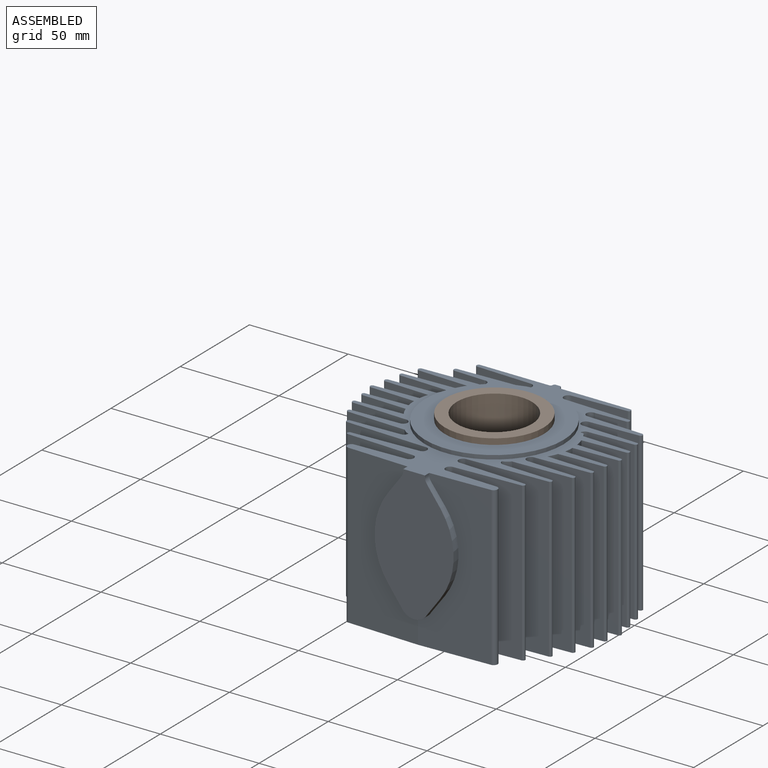
[diagram: assembled view]
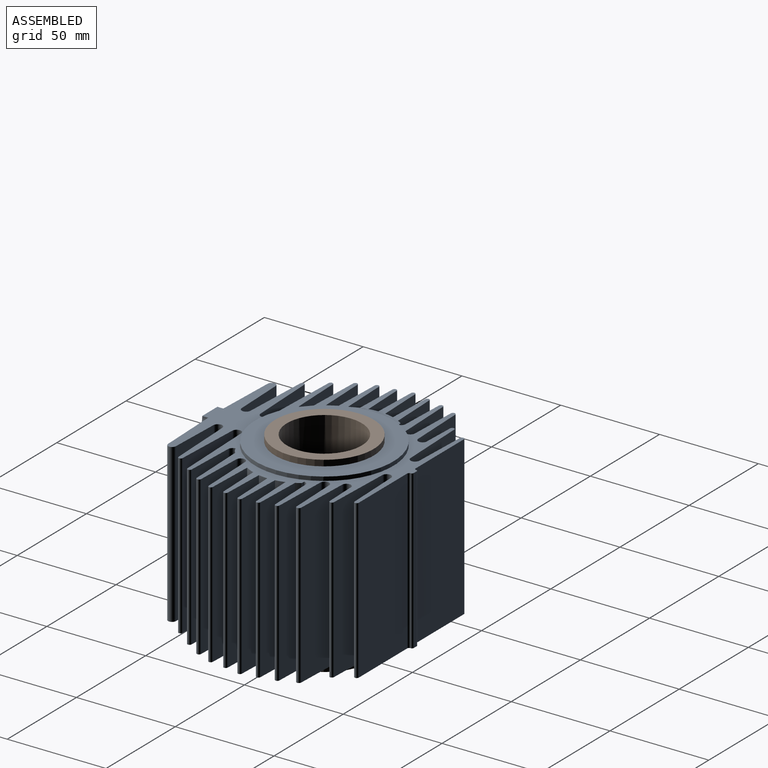
[diagram: assembled view, second angle]
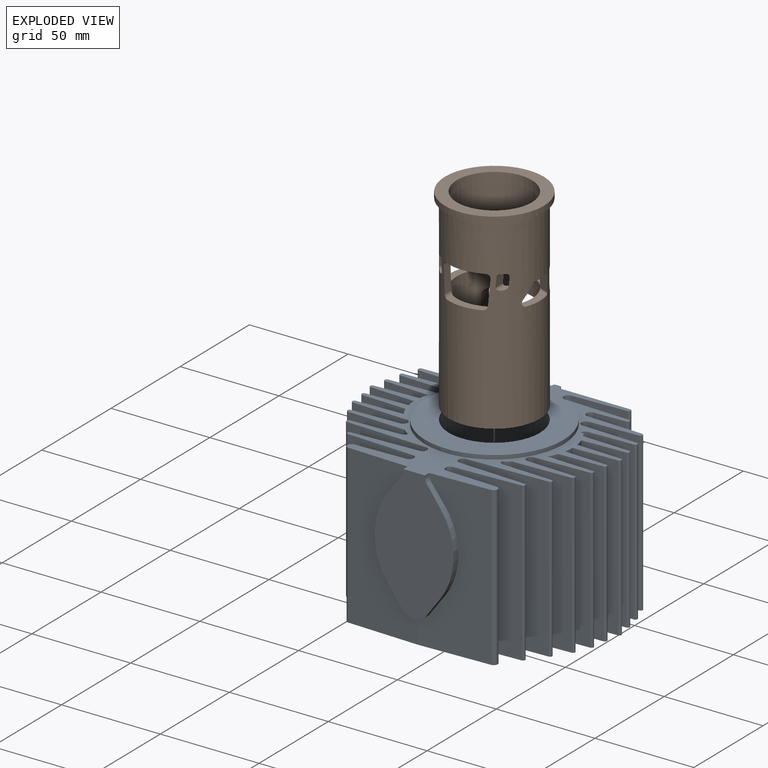
[diagram: exploded view]
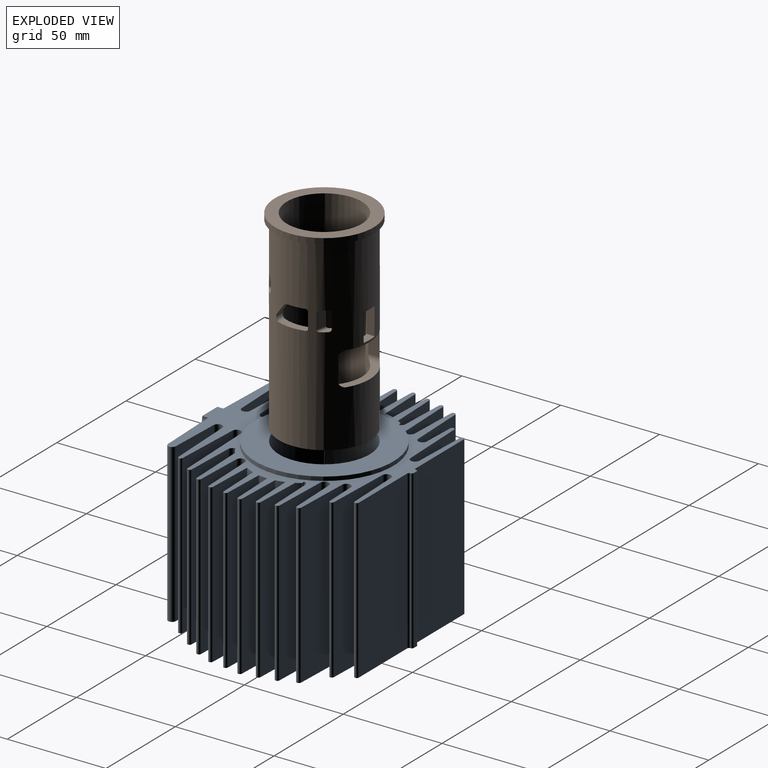
[diagram: exploded view, second angle]
ASSEMBLY  parts=2 mates=2
PART A: 139 faces, bbox 104.6x82.6x127.8 mm
  f0: plane 80.58x34.48mm, normal (-1,0,0.04), area 2377.9mm2, adj f1,f13,f53,f54,f55,f124,f125,f126
  f1: cylinder r=2.25mm len=21.59mm, axis (0,1,0), area 134.6mm2, adj f0,f2,f55,f124
  f2: plane 80.47x26.22mm, normal (1,0,0.03), area 1734.9mm2, adj f1,f13,f14,f54,f55,f124,f125,f126
  f3: plane 80.47x41.22mm, normal (-1,0,0.03), area 2935.7mm2, adj f4,f51,f52,f54,f55,f121,f122,f123
  f4: cylinder r=2.25mm len=21.59mm, axis (0,1,0), area 134.6mm2, adj f3,f5,f55,f123
  f5: plane 80.58x34.48mm, normal (1,0,0.04), area 2377.9mm2, adj f4,f52,f53,f54,f55,f121,f122,f123
  f6: plane 80.58x34.48mm, normal (-1,0,-0.04), area 2377.9mm2, adj f7,f54,f55,f56,f94,f118,f119,f120
  f7: cylinder r=2.25mm len=8.89mm, axis (0,1,0), area 47.3mm2, adj f6,f8,f54,f120
  f8: plane 80.47x26.22mm, normal (1,0,-0.03), area 1734.9mm2, adj f7,f54,f55,f56,f57,f118,f119,f120
  f9: plane 80.47x41.22mm, normal (-1,0,-0.03), area 2935.7mm2, adj f10,f54,f55,f92,f93,f115,f116,f117
  f10: cylinder r=2.25mm len=8.89mm, axis (0,1,0), area 47.3mm2, adj f9,f11,f54,f117
  f11: plane 80.58x34.48mm, normal (1,0,-0.04), area 2377.9mm2, adj f10,f54,f55,f93,f94,f115,f116,f117
  f12: plane 80x35mm, normal (1,0,0), area 2800mm2, adj f18,f54,f55,f97
  f13: cylinder r=2.25mm len=8.89mm, axis (0,1,0), area 47.3mm2, adj f0,f2,f54,f126
  f14: cylinder r=2mm len=80mm, axis (0,1,0), area 502.7mm2, adj f2,f15,f54,f55
  f15: plane 80.47x36.47mm, normal (-1,0,0.03), area 1922.6mm2, adj f14,f54,f55,f58,f127,f128,f129,f130
  f16: cylinder r=23mm len=80mm, axis (0,1,0), area 11561.1mm2, adj f55,f100
  f17: plane 80x35mm, normal (1,0,0), area 2800mm2, adj f54,f55,f59,f99
  f18: cylinder r=1.05mm len=80mm, axis (0,1,0), area 263.9mm2, adj f12,f19,f54,f55
  f19: plane 80x27.75mm, normal (-1,0,0.03), area 2221.4mm2, adj f18,f20,f54,f55
  f20: extruded ~80x4.5mm, area 565.5mm2, adj f19,f21,f54,f55
  f21: plane 80x33.26mm, normal (1,0,0.03), area 2662.2mm2, adj f20,f22,f54,f55
  f22: cylinder r=1.05mm len=80mm, axis (0,1,0), area 256.1mm2, adj f21,f23,f54,f55
  f23: plane 80x15.56mm, normal (-1,0,0.03), area 1245.2mm2, adj f22,f24,f54,f55
  f24: cylinder r=2.25mm len=80mm, axis (0,1,0), area 620.9mm2, adj f23,f25,f54,f55
  f25: plane 80x27.9mm, normal (1,0,0.03), area 2233.4mm2, adj f24,f26,f54,f55
  f26: cylinder r=1.13mm len=80mm, axis (0,1,0), area 266.1mm2, adj f25,f27,f54,f55
  f27: plane 80x24.9mm, normal (-1,0,0.03), area 1993.2mm2, adj f26,f28,f54,f55
  f28: cylinder r=2.25mm len=80mm, axis (0,1,0), area 565.5mm2, adj f27,f29,f54,f55
  f29: plane 80x28.1mm, normal (1,0,0.03), area 2249.4mm2, adj f28,f30,f54,f55
  f30: cylinder r=1.05mm len=80mm, axis (0,1,0), area 263.9mm2, adj f29,f31,f54,f55
  f31: plane 80x22.81mm, normal (-1,0,0.03), area 1825.9mm2, adj f30,f32,f54,f55
  f32: cylinder r=2.25mm len=80mm, axis (0,1,0), area 261.4mm2, adj f31,f54,f55,f114
  f33: plane 80x23.82mm, normal (1,0,0.03), area 1906.8mm2, adj f34,f54,f55,f113
  f34: cylinder r=1.05mm len=80mm, axis (0,1,0), area 263.9mm2, adj f33,f35,f54,f55
  f35: plane 80x22.22mm, normal (-1,0,0.03), area 1779mm2, adj f34,f54,f55,f112
  f36: plane 80x22.69mm, normal (1,0,0.03), area 1816.6mm2, adj f37,f54,f55,f112
  f37: cylinder r=1.05mm len=80mm, axis (0,1,0), area 263.9mm2, adj f36,f38,f54,f55
  f38: plane 80x22.46mm, normal (-1,0,0.03), area 1798mm2, adj f37,f54,f55,f111
  f39: plane 80x21.39mm, normal (1,0,0.03), area 1712.6mm2, adj f40,f54,f55,f111
  f40: cylinder r=1.05mm len=80mm, axis (0,1,0), area 263.9mm2, adj f39,f41,f54,f55
  f41: plane 80x22.41mm, normal (-1,0,0.03), area 1793.8mm2, adj f40,f54,f55,f110
  f42: plane 80x23.62mm, normal (1,0,0.03), area 1890.9mm2, adj f43,f54,f55,f110
  f43: cylinder r=1.05mm len=80mm, axis (0,1,0), area 263.9mm2, adj f42,f44,f54,f55
  f44: plane 80x27.69mm, normal (-1,0,0.03), area 2216.9mm2, adj f43,f45,f54,f55
  f45: cylinder r=2.25mm len=80mm, axis (0,1,0), area 562.7mm2, adj f44,f46,f54,f55
  f46: plane 80x24.18mm, normal (1,0,0.03), area 1935.9mm2, adj f45,f47,f54,f55
  f47: cylinder r=1.08mm len=80mm, axis (0,1,0), area 271.8mm2, adj f46,f48,f54,f55
  f48: plane 80x29.42mm, normal (-1,0,0.03), area 2355mm2, adj f47,f54,f55,f109
  f49: cylinder r=2.25mm len=80mm, axis (0,1,0), area 275mm2, adj f50,f54,f55,f109
  f50: plane 80x25.25mm, normal (1,0,0.03), area 2021mm2, adj f49,f51,f54,f55
  f51: cylinder r=1.05mm len=80mm, axis (0,1,0), area 263.9mm2, adj f3,f50,f54,f55
  f52: cylinder r=2.25mm len=8.89mm, axis (0,1,0), area 47.3mm2, adj f3,f5,f54,f121
  f53: cylinder r=1.05mm len=80mm, axis (0,1,0), area 263.9mm2, adj f0,f5,f54,f55
  f54: plane 127.2x104mm, normal (0,-1,0), area 3334.3mm2, adj f0,f2,f3,f5,f6,f7,f8,f9
  f55: plane 127.2x101.16mm, normal (0,1,0), area 5488.6mm2, adj f0,f1,f2,f3,f4,f5,f6,f8
  f56: cylinder r=2.25mm len=21.59mm, axis (0,1,0), area 134.6mm2, adj f6,f8,f55,f118
  f57: cylinder r=2mm len=80mm, axis (0,1,0), area 502.7mm2, adj f8,f54,f55,f58
  f58: plane 80.47x36.47mm, normal (-1,0,-0.03), area 1922.6mm2, adj f15,f54,f55,f57,f131,f132,f133,f134
  f59: cylinder r=1.05mm len=80mm, axis (0,1,0), area 263.9mm2, adj f17,f54,f55,f60
  f60: plane 80x27.75mm, normal (-1,0,-0.03), area 2221.4mm2, adj f54,f55,f59,f61
  f61: extruded ~80x4.5mm, area 565.5mm2, adj f54,f55,f60,f62
  f62: plane 80x33.26mm, normal (1,0,-0.03), area 2662.2mm2, adj f54,f55,f61,f63
  f63: cylinder r=1.05mm len=80mm, axis (0,1,0), area 256.1mm2, adj f54,f55,f62,f64
  f64: plane 80x15.56mm, normal (-1,0,-0.03), area 1245.2mm2, adj f54,f55,f63,f65
  f65: cylinder r=2.25mm len=80mm, axis (0,1,0), area 620.9mm2, adj f54,f55,f64,f66
  f66: plane 80x27.9mm, normal (1,0,-0.03), area 2233.4mm2, adj f54,f55,f65,f67
  f67: cylinder r=1.13mm len=80mm, axis (0,1,0), area 266.1mm2, adj f54,f55,f66,f68
  f68: plane 80x24.9mm, normal (-1,0,-0.03), area 1993.2mm2, adj f54,f55,f67,f69
  f69: cylinder r=2.25mm len=80mm, axis (0,1,0), area 565.5mm2, adj f54,f55,f68,f70
  f70: plane 80x28.1mm, normal (1,0,-0.03), area 2249.4mm2, adj f54,f55,f69,f71
  f71: cylinder r=1.05mm len=80mm, axis (0,1,0), area 263.9mm2, adj f54,f55,f70,f72
  f72: plane 80x22.81mm, normal (-1,0,-0.03), area 1825.9mm2, adj f54,f55,f71,f73
  f73: cylinder r=2.25mm len=80mm, axis (0,1,0), area 261.4mm2, adj f54,f55,f72,f108
  f74: plane 80x23.82mm, normal (1,0,-0.03), area 1906.8mm2, adj f54,f55,f75,f107
  f75: cylinder r=1.05mm len=80mm, axis (0,1,0), area 263.9mm2, adj f54,f55,f74,f76
  f76: plane 80x22.22mm, normal (-1,0,-0.03), area 1779mm2, adj f54,f55,f75,f106
  f77: plane 80x22.69mm, normal (1,0,-0.03), area 1816.6mm2, adj f54,f55,f78,f106
  f78: cylinder r=1.05mm len=80mm, axis (0,1,0), area 263.9mm2, adj f54,f55,f77,f79
  f79: plane 80x22.46mm, normal (-1,0,-0.03), area 1798mm2, adj f54,f55,f78,f105
  f80: plane 80x21.39mm, normal (1,0,-0.03), area 1712.6mm2, adj f54,f55,f81,f105
  f81: cylinder r=1.05mm len=80mm, axis (0,1,0), area 263.9mm2, adj f54,f55,f80,f82
  f82: plane 80x22.41mm, normal (-1,0,-0.03), area 1793.8mm2, adj f54,f55,f81,f104
  f83: plane 80x23.62mm, normal (1,0,-0.03), area 1890.9mm2, adj f54,f55,f84,f104
  f84: cylinder r=1.05mm len=80mm, axis (0,1,0), area 263.9mm2, adj f54,f55,f83,f85
  f85: plane 80x27.69mm, normal (-1,0,-0.03), area 2216.9mm2, adj f54,f55,f84,f86
  f86: cylinder r=2.25mm len=80mm, axis (0,1,0), area 562.7mm2, adj f54,f55,f85,f87
  f87: plane 80x24.18mm, normal (1,0,-0.03), area 1935.9mm2, adj f54,f55,f86,f88
  f88: cylinder r=1.08mm len=80mm, axis (0,1,0), area 271.8mm2, adj f54,f55,f87,f89
  f89: plane 80x29.42mm, normal (-1,0,-0.03), area 2355mm2, adj f54,f55,f88,f103
  f90: cylinder r=2.25mm len=80mm, axis (0,1,0), area 275mm2, adj f54,f55,f91,f103
  f91: plane 80x25.25mm, normal (1,0,-0.03), area 2021mm2, adj f54,f55,f90,f92
  f92: cylinder r=1.05mm len=80mm, axis (0,1,0), area 263.9mm2, adj f9,f54,f55,f91
  f93: cylinder r=2.25mm len=21.59mm, axis (0,1,0), area 134.6mm2, adj f9,f11,f55,f115
  f94: cylinder r=1.05mm len=80mm, axis (0,1,0), area 263.9mm2, adj f6,f11,f54,f55
  f95: plane 80x2mm, normal (1,0,0), area 160mm2, adj f54,f55,f96,f98
  f96: cylinder r=1mm len=80mm, axis (0,-1,0), area 125.7mm2, adj f54,f55,f95,f97
  f97: cylinder r=1mm len=80mm, axis (0,1,0), area 125.7mm2, adj f12,f54,f55,f96
  f98: cylinder r=1mm len=80mm, axis (0,-1,0), area 125.7mm2, adj f54,f55,f95,f99
  f99: cylinder r=1mm len=80mm, axis (0,1,0), area 125.7mm2, adj f17,f54,f55,f98
  f100: cylinder r=23mm len=46.01mm, axis (0,1,0), area 289.1mm2, adj f16,f102
  f101: cylinder r=35mm len=70mm, axis (0,1,0), area 439.8mm2, adj f54,f102
  f102: plane 70x70mm, normal (0,-1,0), area 2185.9mm2, adj f100,f101
  f103: cylinder r=6.5mm len=80mm, axis (0,1,0), area 332.3mm2, adj f54,f55,f89,f90
  f104: cylinder r=25mm len=80mm, axis (0,1,0), area 407.6mm2, adj f54,f55,f82,f83
  f105: cylinder r=25mm len=80mm, axis (0,1,0), area 372.9mm2, adj f54,f55,f79,f80
  f106: cylinder r=25mm len=80mm, axis (0,1,0), area 378mm2, adj f54,f55,f76,f77
  f107: cylinder r=25mm len=80mm, axis (0,1,0), area 215.8mm2, adj f54,f55,f74,f108
  f108: cylinder r=8mm len=80mm, axis (0,1,0), area 140.3mm2, adj f54,f55,f73,f107
  f109: cylinder r=6.5mm len=80mm, axis (0,1,0), area 332.3mm2, adj f48,f49,f54,f55
  f110: cylinder r=25mm len=80mm, axis (0,1,0), area 407.6mm2, adj f41,f42,f54,f55
  f111: cylinder r=25mm len=80mm, axis (0,1,0), area 372.9mm2, adj f38,f39,f54,f55
  f112: cylinder r=25mm len=80mm, axis (0,1,0), area 378mm2, adj f35,f36,f54,f55
  f113: cylinder r=25mm len=80mm, axis (0,1,0), area 215.8mm2, adj f33,f54,f55,f114
  f114: cylinder r=8mm len=80mm, axis (0,1,0), area 140.3mm2, adj f32,f54,f55,f113
  f115: plane 7.15x5.24mm, normal (0,0.59,-0.81), area 36.8mm2, adj f9,f11,f93,f116
  f116: cylinder r=35mm len=41.36mm, axis (-1,0,0), area 209.4mm2, adj f9,f11,f115,f117
  f117: plane 7.15x5.24mm, normal (0,-0.59,-0.81), area 36.8mm2, adj f9,f10,f11,f116
  f118: plane 7.15x5.24mm, normal (0,0.59,-0.81), area 36.8mm2, adj f6,f8,f56,f119
  f119: cylinder r=35mm len=41.36mm, axis (-1,0,0), area 209.4mm2, adj f6,f8,f118,f120
  f120: plane 7.15x5.24mm, normal (0,-0.59,-0.81), area 36.8mm2, adj f6,f7,f8,f119
  f121: plane 7.15x5.24mm, normal (0,-0.59,0.81), area 36.8mm2, adj f3,f5,f52,f122
  f122: cylinder r=35mm len=41.36mm, axis (-1,0,0), area 209.4mm2, adj f3,f5,f121,f123
  f123: plane 7.15x5.24mm, normal (0,0.59,0.81), area 36.8mm2, adj f3,f4,f5,f122
  f124: plane 7.15x5.24mm, normal (0,0.59,0.81), area 36.8mm2, adj f0,f1,f2,f125
  f125: cylinder r=35mm len=41.36mm, axis (-1,0,0), area 209.4mm2, adj f0,f2,f124,f126
  f126: plane 7.15x5.24mm, normal (0,-0.59,0.81), area 36.8mm2, adj f0,f2,f13,f125
  f127: plane 9.16x6.71mm, normal (0,0.59,0.81), area 36.1mm2, adj f15,f128,f131,f136
  f128: cylinder r=35mm len=41.36mm, axis (1,0,0), area 146mm2, adj f15,f127,f129,f136
  f129: plane 9.26x6.78mm, normal (0,-0.59,0.81), area 36.5mm2, adj f15,f128,f136,f137
  f130: plane 3.03x0.75mm, normal (0,0,1), area 2.3mm2, adj f15,f54,f136,f137
  f131: cylinder r=7.5mm len=13.06mm, axis (1,0,0), area 46.8mm2, adj f15,f58,f127,f135,f136
  f132: plane 3.03x0.75mm, normal (0,0,-1), area 2.3mm2, adj f54,f58,f136,f138
  f133: plane 9.26x6.78mm, normal (0,-0.59,-0.81), area 36.5mm2, adj f58,f134,f136,f138
  f134: cylinder r=35mm len=41.36mm, axis (1,0,0), area 146mm2, adj f58,f133,f135,f136
  f135: plane 9.16x6.71mm, normal (0,0.59,-0.81), area 36.1mm2, adj f58,f131,f134,f136
  f136: plane 67.3x40mm, normal (-1,0,0), area 1917.1mm2, adj f54,f127,f128,f129,f130,f131,f132,f133
  f137: cylinder r=5mm len=3.06mm, axis (-1,0,0), area 9.6mm2, adj f15,f129,f130,f136
  f138: cylinder r=5mm len=3.06mm, axis (1,0,0), area 9.6mm2, adj f58,f132,f133,f136
PART B: 74 faces, bbox 50.2x50.2x98.2 mm
  f0: cylinder r=19mm len=98mm, axis (0,0,-1), area 9929.1mm2, adj f3,f4,f6,f7,f8,f9,f10,f11
  f1: cylinder r=23mm len=95mm, axis (0,0,-1), area 12176.4mm2, adj f3,f5,f6,f7,f8,f9,f10,f11
  f2: cylinder r=25mm len=50mm, axis (0,0,-1), area 471.2mm2, adj f4,f5
  f3: plane 46x46mm, normal (0,0,-1), area 527.8mm2, adj f0,f1
  f4: plane 50x50mm, normal (0,0,1), area 829.4mm2, adj f0,f2
  f5: plane 50x50mm, normal (0,0,-1), area 301.6mm2, adj f1,f2
  f6: plane 24x8.27mm, normal (0,0,-1), area 102.3mm2, adj f0,f1,f10,f13
  f7: plane 11x5.77mm, normal (1,0,0), area 63.5mm2, adj f0,f1,f10,f11
  f8: plane 24x8.27mm, normal (0,0,1), area 102.3mm2, adj f0,f1,f11,f12
  f9: plane 11x5.77mm, normal (-1,0,0), area 63.5mm2, adj f0,f1,f12,f13
  f10: cylinder r=3mm len=7.96mm, axis (0,1,0), area 25.5mm2, adj f0,f1,f6,f7
  f11: cylinder r=3mm len=7.96mm, axis (0,1,0), area 25.5mm2, adj f0,f1,f7,f8
  f12: cylinder r=3mm len=7.96mm, axis (0,1,0), area 25.5mm2, adj f0,f1,f8,f9
  f13: cylinder r=3mm len=7.96mm, axis (0,1,0), area 25.5mm2, adj f0,f1,f6,f9
  f14: plane 12.85x5.55mm, normal (1,0,0.07), area 60.8mm2, adj f0,f1,f26,f29
  f15: plane 17.79x6.21mm, normal (0,0,1), area 73.5mm2, adj f0,f1,f26,f27
  f16: plane 12.85x5.55mm, normal (-1,0,0.07), area 60.8mm2, adj f0,f1,f27,f28
  f17: plane 19.69x6.75mm, normal (0,0,-1), area 82mm2, adj f0,f1,f28,f29
  f18: plane 7.47x0.99mm, normal (0,0,-1), area 6.2mm2, adj f0,f1,f70,f73
  f19: plane 5.65x4.53mm, normal (1,0,-0.07), area 24mm2, adj f0,f1,f70,f71
  f20: plane 7.22x0.99mm, normal (0,0,1), area 6mm2, adj f0,f1,f71,f72
  f21: plane 8.59x4.64mm, normal (-1,0,0.07), area 35.2mm2, adj f0,f1,f72,f73
  f22: plane 5.65x4.53mm, normal (-1,0,-0.07), area 24mm2, adj f0,f1,f66,f69
  f23: plane 7.47x0.99mm, normal (0,0,-1), area 6.2mm2, adj f0,f1,f66,f67
  f24: plane 8.59x4.64mm, normal (1,0,0.07), area 35.2mm2, adj f0,f1,f67,f68
  f25: plane 7.22x0.99mm, normal (0,0,1), area 6mm2, adj f0,f1,f68,f69
  f26: cylinder r=2mm len=5.64mm, axis (0,-1,0), area 13.7mm2, adj f0,f1,f14,f15
  f27: cylinder r=2mm len=5.64mm, axis (0,-1,0), area 13.7mm2, adj f0,f1,f15,f16
  f28: cylinder r=2mm len=5.93mm, axis (0,-1,0), area 15.6mm2, adj f0,f1,f16,f17
  f29: cylinder r=2mm len=5.93mm, axis (0,-1,0), area 15.6mm2, adj f0,f1,f14,f17
  f30: plane 9.47x4.39mm, normal (0,0,1), area 15.9mm2, adj f0,f1,f57,f60
  f31: plane 9.47x4.39mm, normal (0,0,-1), area 15.9mm2, adj f0,f1,f56,f61
  f32: plane 9.47x4.39mm, normal (0,0,-1), area 15.9mm2, adj f0,f1,f55,f58
  f33: plane 9.47x4.39mm, normal (0,0,1), area 15.9mm2, adj f0,f1,f54,f59
  f34: plane 15.61x5.69mm, normal (0,0,1), area 59.7mm2, adj f0,f1,f47,f50
  f35: plane 6.19x6.16mm, normal (0,0.78,-0.62), area 32.7mm2, adj f0,f1,f46,f47
  f36: plane 10.81x5.66mm, normal (0,0,-1), area 39.8mm2, adj f0,f1,f46,f51
  f37: plane 10.81x5.66mm, normal (0,0,-1), area 39.8mm2, adj f0,f1,f48,f52
  f38: plane 15.61x5.69mm, normal (0,0,1), area 59.7mm2, adj f0,f1,f49,f53
  f39: plane 6.19x6.16mm, normal (0,0.78,-0.62), area 32.7mm2, adj f0,f1,f48,f49
  f40: plane 9.52x8mm, normal (-0.2,-0.98,0), area 77.7mm2, adj f0,f1,f60,f61
  f41: plane 9.52x8mm, normal (0.2,-0.98,0), area 77.7mm2, adj f0,f1,f58,f59
  f42: plane 8x5.39mm, normal (0.21,0.98,0), area 44.1mm2, adj f0,f1,f56,f57
  f43: plane 8x5.39mm, normal (-0.21,0.98,0), area 44.1mm2, adj f0,f1,f54,f55
  f44: plane 8x5.23mm, normal (0.37,-0.93,0), area 45.1mm2, adj f0,f1,f52,f53
  f45: plane 8x5.23mm, normal (-0.37,-0.93,0), area 45.1mm2, adj f0,f1,f50,f51
  f46: cylinder r=2mm len=4.36mm, axis (-1,0,0), area 7.3mm2, adj f0,f1,f35,f36
  f47: cylinder r=2mm len=5.37mm, axis (1,0,0), area 20.1mm2, adj f0,f1,f34,f35
  f48: cylinder r=2mm len=4.36mm, axis (-1,0,0), area 7.3mm2, adj f0,f1,f37,f39
  f49: cylinder r=2mm len=5.37mm, axis (1,0,0), area 20.1mm2, adj f0,f1,f38,f39
  f50: cylinder r=1mm len=6.33mm, axis (0.93,-0.37,0), area 8.6mm2, adj f0,f1,f34,f45
  f51: cylinder r=1mm len=6.33mm, axis (0.93,-0.37,0), area 8.6mm2, adj f0,f1,f36,f45
  f52: cylinder r=1mm len=6.33mm, axis (-0.93,-0.37,0), area 8.6mm2, adj f0,f1,f37,f44
  f53: cylinder r=1mm len=6.33mm, axis (-0.93,-0.37,0), area 8.6mm2, adj f0,f1,f38,f44
  f54: cylinder r=1mm len=6.82mm, axis (0.98,0.21,0), area 8.9mm2, adj f0,f1,f33,f43
  f55: cylinder r=1mm len=6.82mm, axis (0.98,0.21,0), area 8.9mm2, adj f0,f1,f32,f43
  f56: cylinder r=1mm len=6.82mm, axis (-0.98,0.21,0), area 8.9mm2, adj f0,f1,f31,f42
  f57: cylinder r=1mm len=6.82mm, axis (-0.98,0.21,0), area 8.9mm2, adj f0,f1,f30,f42
  f58: cylinder r=1mm len=10.98mm, axis (0.98,0.2,0), area 13.9mm2, adj f0,f1,f32,f41
  f59: cylinder r=1mm len=10.98mm, axis (0.98,0.2,0), area 13.9mm2, adj f0,f1,f33,f41
  f60: cylinder r=1mm len=10.98mm, axis (-0.98,0.2,0), area 13.9mm2, adj f0,f1,f30,f40
  f61: cylinder r=1mm len=10.98mm, axis (-0.98,0.2,0), area 13.9mm2, adj f0,f1,f31,f40
  f62: plane 18.08x4.15mm, normal (-1,0,0), area 65.2mm2, adj f0,f1,f64,f65
  f63: plane 18.08x4.15mm, normal (1,0,0), area 65.2mm2, adj f0,f1,f64,f65
  f64: plane 8x4.43mm, normal (0,0,1), area 32.2mm2, adj f0,f1,f62,f63
  f65: cone r=19mm half-angle=45deg, axis (0,0,-1), area 45.8mm2, adj f0,f1,f62,f63
  f66: cylinder r=1.5mm len=7.19mm, axis (0,1,0), area 12.5mm2, adj f0,f1,f22,f23
  f67: cylinder r=1.5mm len=9.73mm, axis (0,-1,0), area 18.4mm2, adj f0,f1,f23,f24
  f68: cylinder r=1.5mm len=9.18mm, axis (0,-1,0), area 15.8mm2, adj f0,f1,f24,f25
  f69: cylinder r=1.5mm len=6.99mm, axis (0,1,0), area 13.4mm2, adj f0,f1,f22,f25
  f70: cylinder r=1.5mm len=7.19mm, axis (0,1,0), area 12.5mm2, adj f0,f1,f18,f19
  f71: cylinder r=1.5mm len=6.99mm, axis (0,1,0), area 13.4mm2, adj f0,f1,f19,f20
  f72: cylinder r=1.5mm len=9.18mm, axis (0,-1,0), area 15.8mm2, adj f0,f1,f20,f21
  f73: cylinder r=1.5mm len=9.73mm, axis (0,-1,0), area 18.4mm2, adj f0,f1,f18,f21
PLACE A rot(axis=(-0.58,-0.58,0.58),120deg) t=(-143.14,-189.72,3.13)mm
PLACE B t=(-143.14,-189.72,39.13)mm
MATE planar B.f2 <-> A.f101  axis (0,0,-1) through (-143.14,-189.72,85.13)mm
MATE cylindrical A.f16 <-> B.f1  axis (0,0,-1) through (-143.14,-189.72,83.13)mm
